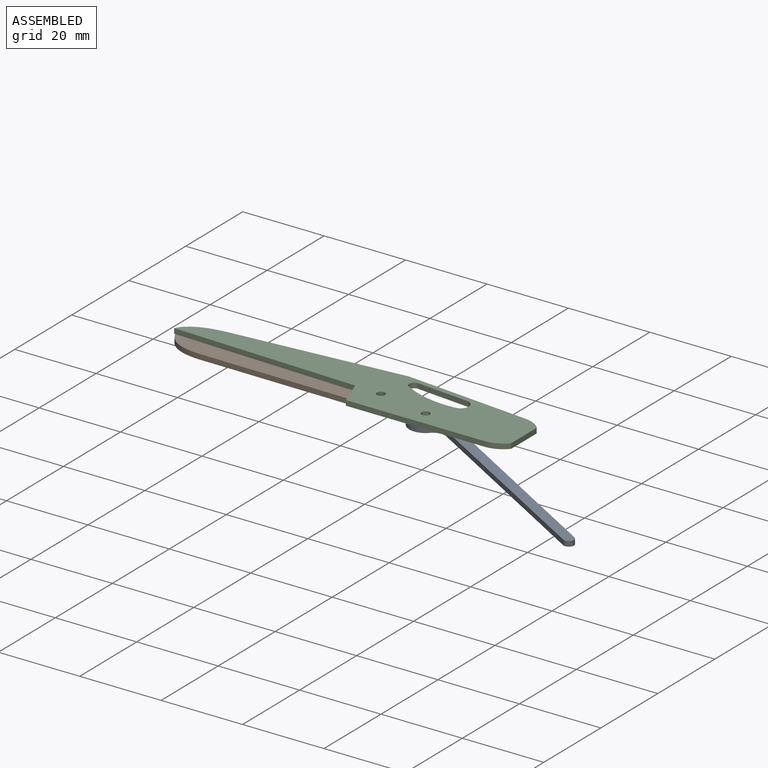
[diagram: assembled view]
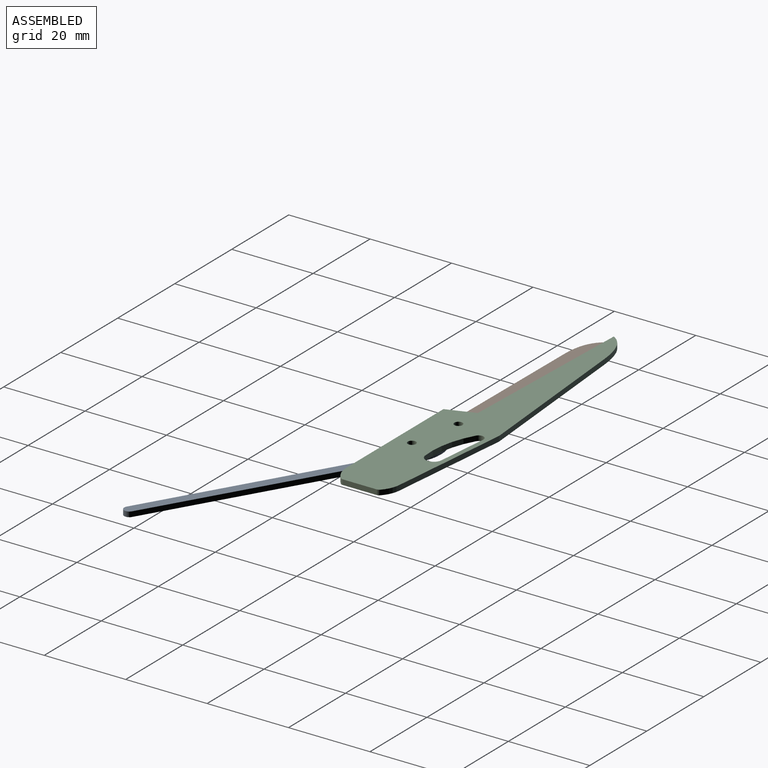
[diagram: assembled view, second angle]
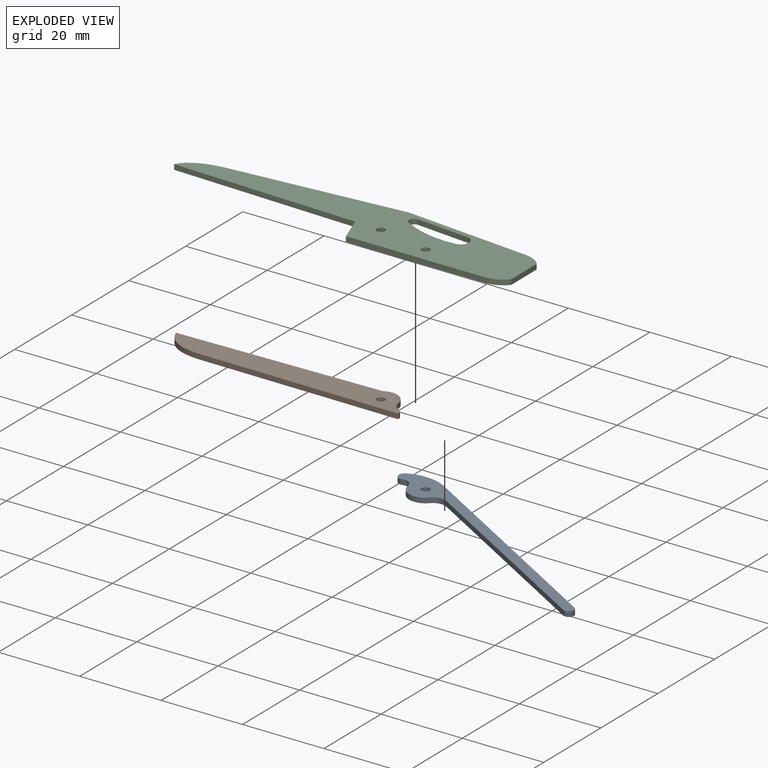
[diagram: exploded view]
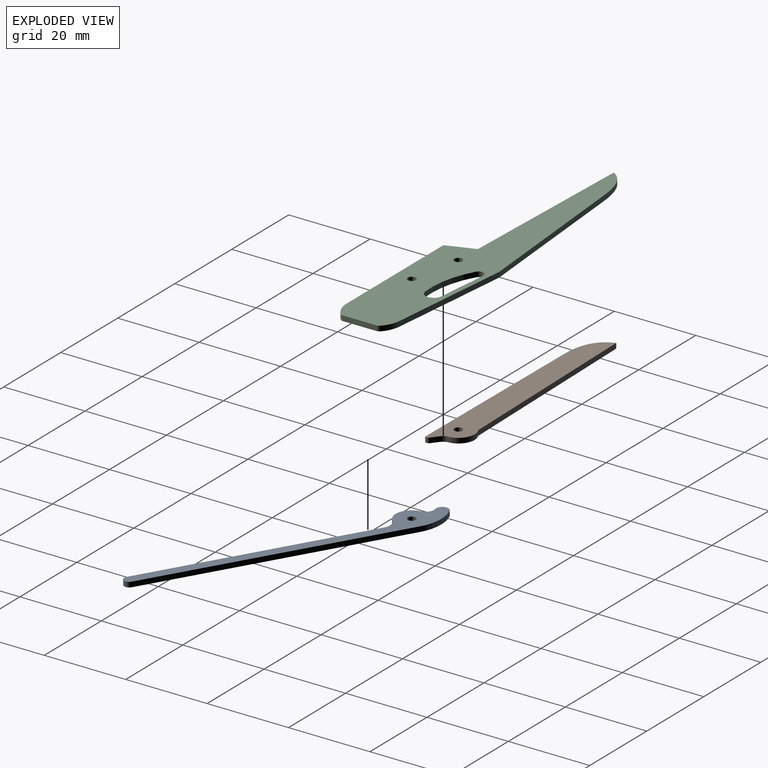
[diagram: exploded view, second angle]
ASSEMBLY  parts=3 mates=4
PART A: 11 faces, bbox 66.8x34.5x1.3 mm
  f0: cylinder r=2mm len=2.56mm, axis (0,0,-1), area 4.3mm2, adj f1,f7,f9,f10
  f1: cylinder r=4mm len=6.96mm, axis (0,0,-1), area 11.4mm2, adj f0,f2,f9,f10
  f2: cylinder r=3mm len=3.71mm, axis (0,0,-1), area 5.1mm2, adj f1,f3,f9,f10
  f3: plane 49.75x27.51mm, normal (-0.48,-0.88,0), area 71.1mm2, adj f2,f4,f9,f10
  f4: cylinder r=1.25mm len=2.34mm, axis (0,0,-1), area 4.9mm2, adj f3,f5,f9,f10
  f5: plane 55.74x30.82mm, normal (0.48,0.88,0), area 79.6mm2, adj f4,f6,f9,f10
  f6: cylinder r=10.47mm len=9.53mm, axis (0,0,-1), area 12.4mm2, adj f5,f7,f9,f10
  f7: cylinder r=1.5mm len=2.86mm, axis (0,0,-1), area 5.6mm2, adj f0,f6,f9,f10
  f8: cylinder r=1mm len=2mm, axis (0,0,-1), area 7.9mm2, adj f9,f10
  f9: plane 66.78x34.47mm, normal (0,0,1), area 224.6mm2, adj f0,f1,f2,f3,f4,f5,f6,f7
  f10: plane 66.78x34.47mm, normal (0,0,-1), area 224.6mm2, adj f0,f1,f2,f3,f4,f5,f6,f7
PART B: 10 faces, bbox 58.7x7.5x1.3 mm
  f0: cylinder r=2mm len=1.43mm, axis (0,0,-1), area 2.1mm2, adj f1,f6,f8,f9
  f1: cylinder r=4mm len=6.03mm, axis (0,0,-1), area 10.2mm2, adj f0,f2,f8,f9
  f2: plane 49.96x1.44mm, normal (-0.03,1,0), area 62.5mm2, adj f1,f3,f8,f9
  f3: extruded ~10x5.5mm, area 15.3mm2, adj f2,f4,f8,f9
  f4: plane 48.63x1.25mm, normal (0,-1,0), area 60.8mm2, adj f3,f5,f8,f9
  f5: cylinder r=0.86mm len=1.25mm, axis (0,0,-1), area 1.5mm2, adj f4,f6,f8,f9
  f6: plane 1.64x1.27mm, normal (0.61,0.79,0), area 2.6mm2, adj f0,f5,f8,f9
  f7: cylinder r=1mm len=2mm, axis (0,0,-1), area 7.9mm2, adj f8,f9
  f8: plane 58.73x7.5mm, normal (0,0,1), area 341.6mm2, adj f0,f1,f2,f3,f4,f5,f6,f7
  f9: plane 58.73x7.5mm, normal (0,0,-1), area 341.6mm2, adj f0,f1,f2,f3,f4,f5,f6,f7
PART C: 20 faces, bbox 87x16.5x1.3 mm
  f0: plane 87x16.5mm, normal (0,0,1), area 827.4mm2, adj f2,f3,f4,f5,f6,f7,f8,f9
  f1: plane 87x16.5mm, normal (0,0,-1), area 827.4mm2, adj f2,f3,f4,f5,f6,f7,f8,f9
  f2: cylinder r=6.75mm len=4.03mm, axis (0,0,-1), area 5.7mm2, adj f0,f1,f3,f18
  f3: plane 30.57x3.02mm, normal (0.1,1,0), area 38.4mm2, adj f0,f1,f2,f19
  f4: plane 41.91x3.63mm, normal (-0.09,1,0), area 52.6mm2, adj f0,f1,f5,f19
  f5: extruded ~10x4.62mm, area 14.3mm2, adj f0,f1,f4,f6
  f6: plane 45.52x1.5mm, normal (-0.03,-1,0), area 56.9mm2, adj f0,f1,f5,f7
  f7: plane 6.75x2.46mm, normal (-0.94,-0.34,0), area 9mm2, adj f0,f1,f6,f8
  f8: plane 34.02x1.25mm, normal (0,-1,0), area 42.5mm2, adj f0,f1,f7,f9
  f9: cylinder r=6.75mm len=4.7mm, axis (0,0,-1), area 6.5mm2, adj f0,f1,f8,f17
  f10: plane 8.26x1.25mm, normal (1,0,0), area 10.3mm2, adj f0,f1,f17,f18
  f11: cylinder r=1mm len=2mm, axis (0,0,-1), area 7.9mm2, adj f0,f1
  f12: cylinder r=1mm len=2mm, axis (0,0,1), area 7.9mm2, adj f0,f1
  f13: plane 12.87x1.27mm, normal (-0.1,-1,0), area 16.2mm2, adj f0,f1,f14,f16
  f14: cylinder r=1.25mm len=2.33mm, axis (0,0,1), area 4.2mm2, adj f0,f1,f13,f15
  f15: cylinder r=22.87mm len=13.61mm, axis (0,0,1), area 17.7mm2, adj f0,f1,f14,f16
  f16: cylinder r=2mm len=3.98mm, axis (0,0,1), area 7.4mm2, adj f0,f1,f13,f15
  f17: cylinder r=1mm len=1.25mm, axis (0,0,-1), area 1mm2, adj f0,f1,f9,f10
  f18: cylinder r=1mm len=1.25mm, axis (0,0,-1), area 1mm2, adj f0,f1,f2,f10
  f19: cylinder r=1mm len=1.25mm, axis (0,0,-1), area 0.2mm2, adj f0,f1,f3,f4
PLACE A rot(axis=(0,0,-1),1.7deg) t=(-12.79,-10.52,8.94)mm
PLACE B rot(axis=(0,0,-1),0.4deg) t=(-12.86,-10.24,8.94)mm
PLACE C t=(-12.86,-10.03,11.44)mm fixed
MATE cylindrical C.f11 <-> B.f1  axis (0,0,1) through (-42.86,-10.28,12.69)mm
MATE planar C.f2 <-> B.f8  axis (0,0,-1) through (-12.86,-10.03,11.44)mm
MATE planar A.f9 <-> C.f1  axis (0,0,1) through (-9.55,-22.69,11.44)mm
MATE cylindrical A.f1 <-> C.f12  axis (0,0,1) through (-30.1,-12.78,11.44)mm
